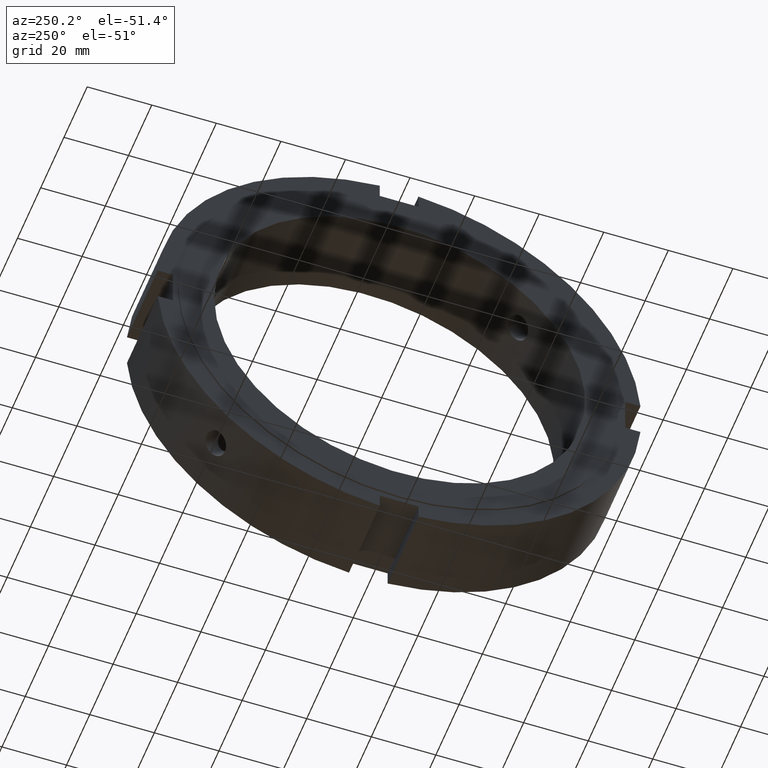
[diagram: clean part render]
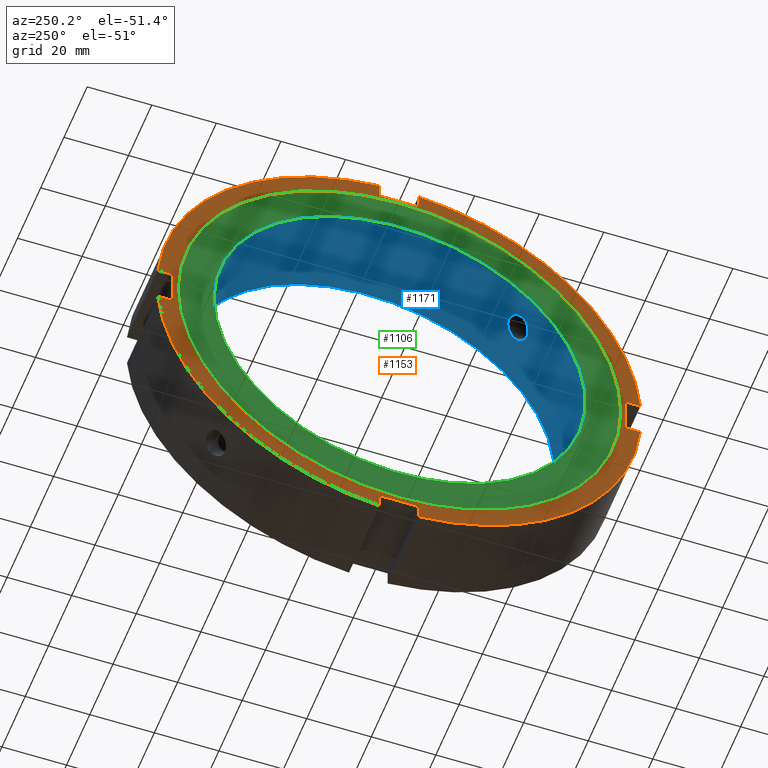
[diagram: same view with three faces highlighted in distinct colors, each labeled with its STEP entity id]
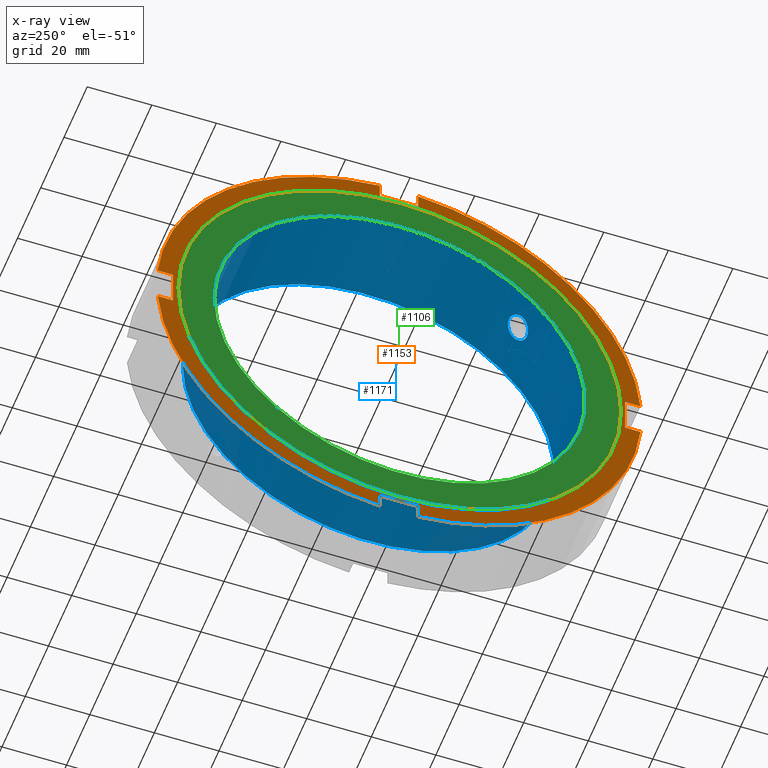
[diagram: x-ray of the same camera — body ghosted, the three highlighted faces saturated]
A machine part, auxiliary view with three faces highlighted in distinct colors.
The next image is the same camera in x-ray (body ghosted, the three faces saturated) — at least one of them is partly hidden behind the body in this view.
Their STEP definitions:

[orange] entity #1153 — the highlighted planar face has unit normal (-1, 0, 0).
#533=CARTESIAN_POINT('',(0.49999999999998,-6.000000000000011,-70.0));
#534=VERTEX_POINT('',#533);
#535=CARTESIAN_POINT('',(0.49999999999998,-6.00000000000001,-74.759614766262672));
#536=VERTEX_POINT('',#535);
#537=CARTESIAN_POINT('',(0.49999999999998,-6.000000000000012,-70.0));
#538=DIRECTION('',(0.0,0.0,-1.0));
#539=VECTOR('',#538,4.759614766262672);
#540=LINE('',#537,#539);
#541=EDGE_CURVE('',#534,#536,#540,.T.);
#573=CARTESIAN_POINT('',(0.49999999999998,5.999999999999984,-74.759614766262672));
#574=VERTEX_POINT('',#573);
#575=CARTESIAN_POINT('',(0.49999999999998,5.999999999999984,-70.0));
#576=VERTEX_POINT('',#575);
#577=CARTESIAN_POINT('',(0.49999999999998,5.999999999999977,-74.759614766262672));
#578=DIRECTION('',(0.0,0.0,1.0));
#579=VECTOR('',#578,4.759614766262672);
#580=LINE('',#577,#579);
#581=EDGE_CURVE('',#574,#576,#580,.T.);
#613=CARTESIAN_POINT('',(0.49999999999998,5.999999999999986,-70.0));
#614=DIRECTION('',(0.0,-1.0,0.0));
#615=VECTOR('',#614,12.0);
#616=LINE('',#613,#615);
#617=EDGE_CURVE('',#576,#534,#616,.T.);
#635=CARTESIAN_POINT('',(0.49999999999998,-70.0,6.000000000000006));
#636=VERTEX_POINT('',#635);
#637=CARTESIAN_POINT('',(0.49999999999998,-74.759614766262672,6.000000000000005));
#638=VERTEX_POINT('',#637);
#639=CARTESIAN_POINT('',(0.49999999999998,-70.0,6.000000000000007));
#640=DIRECTION('',(0.0,-1.0,0.0));
#641=VECTOR('',#640,4.759614766262672);
#642=LINE('',#639,#641);
#643=EDGE_CURVE('',#636,#638,#642,.T.);
#675=CARTESIAN_POINT('',(0.49999999999998,-74.759614766262672,-5.999999999999989));
#676=VERTEX_POINT('',#675);
#677=CARTESIAN_POINT('',(0.49999999999998,-70.0,-5.999999999999989));
#678=VERTEX_POINT('',#677);
#679=CARTESIAN_POINT('',(0.49999999999998,-74.759614766262672,-5.999999999999989));
#680=DIRECTION('',(0.0,1.0,0.0));
#681=VECTOR('',#680,4.759614766262672);
#682=LINE('',#679,#681);
#683=EDGE_CURVE('',#676,#678,#682,.T.);
#715=CARTESIAN_POINT('',(0.49999999999998,-70.0,-5.999999999999989));
#716=DIRECTION('',(0.0,0.0,1.0));
#717=VECTOR('',#716,11.999999999999996);
#718=LINE('',#715,#717);
#719=EDGE_CURVE('',#678,#636,#718,.T.);
#737=CARTESIAN_POINT('',(0.49999999999998,6.000000000000002,70.0));
#738=VERTEX_POINT('',#737);
#739=CARTESIAN_POINT('',(0.49999999999998,6.000000000000001,74.759614766262672));
#740=VERTEX_POINT('',#739);
#741=CARTESIAN_POINT('',(0.49999999999998,6.000000000000004,70.0));
#742=DIRECTION('',(0.0,0.0,1.0));
#743=VECTOR('',#742,4.759614766262672);
#744=LINE('',#741,#743);
#745=EDGE_CURVE('',#738,#740,#744,.T.);
#777=CARTESIAN_POINT('',(0.49999999999998,-5.999999999999993,74.759614766262672));
#778=VERTEX_POINT('',#777);
#779=CARTESIAN_POINT('',(0.49999999999998,-5.999999999999993,70.0));
#780=VERTEX_POINT('',#779);
#781=CARTESIAN_POINT('',(0.49999999999998,-5.999999999999995,74.759614766262672));
#782=DIRECTION('',(0.0,0.0,-1.0));
#783=VECTOR('',#782,4.759614766262672);
#784=LINE('',#781,#783);
#785=EDGE_CURVE('',#778,#780,#784,.T.);
#817=CARTESIAN_POINT('',(0.49999999999998,-5.999999999999993,70.0));
#818=DIRECTION('',(0.0,1.0,0.0));
#819=VECTOR('',#818,11.999999999999996);
#820=LINE('',#817,#819);
#821=EDGE_CURVE('',#780,#738,#820,.T.);
#849=CARTESIAN_POINT('',(0.49999999999998,74.759614766262672,5.999999999999997));
#850=VERTEX_POINT('',#849);
#857=CARTESIAN_POINT('',(0.49999999999998,0.0,0.0));
#858=DIRECTION('',(1.0,0.0,0.0));
#859=DIRECTION('',(0.0,1.0,0.0));
#860=AXIS2_PLACEMENT_3D('',#857,#858,#859);
#861=CIRCLE('',#860,75.0);
#862=EDGE_CURVE('',#850,#740,#861,.T.);
#881=CARTESIAN_POINT('',(0.49999999999998,0.0,0.0));
#882=DIRECTION('',(1.0,0.0,0.0));
#883=DIRECTION('',(0.0,1.0,0.0));
#884=AXIS2_PLACEMENT_3D('',#881,#882,#883);
#885=CIRCLE('',#884,75.0);
#886=EDGE_CURVE('',#778,#638,#885,.T.);
#900=CARTESIAN_POINT('',(0.49999999999998,74.759614766262672,-5.999999999999996));
#901=VERTEX_POINT('',#900);
#902=CARTESIAN_POINT('',(0.49999999999998,0.0,0.0));
#903=DIRECTION('',(1.0,0.0,0.0));
#904=DIRECTION('',(0.0,1.0,0.0));
#905=AXIS2_PLACEMENT_3D('',#902,#903,#904);
#906=CIRCLE('',#905,75.0);
#907=EDGE_CURVE('',#574,#901,#906,.T.);
#944=CARTESIAN_POINT('',(0.49999999999998,0.0,0.0));
#945=DIRECTION('',(1.0,0.0,0.0));
#946=DIRECTION('',(0.0,1.0,0.0));
#947=AXIS2_PLACEMENT_3D('',#944,#945,#946);
#948=CIRCLE('',#947,75.0);
#949=EDGE_CURVE('',#676,#536,#948,.T.);
#1019=CARTESIAN_POINT('',(0.49999999999998,70.0,-5.999999999999997));
#1020=VERTEX_POINT('',#1019);
#1021=CARTESIAN_POINT('',(0.49999999999998,70.0,-5.999999999999997));
#1022=DIRECTION('',(0.0,1.0,0.0));
#1023=VECTOR('',#1022,4.759614766262672);
#1024=LINE('',#1021,#1023);
#1025=EDGE_CURVE('',#1020,#901,#1024,.T.);
#1043=CARTESIAN_POINT('',(0.49999999999998,70.0,5.999999999999997));
#1044=VERTEX_POINT('',#1043);
#1045=CARTESIAN_POINT('',(0.49999999999998,74.759614766262672,5.999999999999996));
#1046=DIRECTION('',(0.0,-1.0,0.0));
#1047=VECTOR('',#1046,4.759614766262672);
#1048=LINE('',#1045,#1047);
#1049=EDGE_CURVE('',#850,#1044,#1048,.T.);
#1067=CARTESIAN_POINT('',(0.49999999999998,70.0,5.999999999999997));
#1068=DIRECTION('',(0.0,0.0,-1.0));
#1069=VECTOR('',#1068,11.999999999999996);
#1070=LINE('',#1067,#1069);
#1071=EDGE_CURVE('',#1044,#1020,#1070,.T.);
#1112=CARTESIAN_POINT('',(0.49999999999998,68.5,0.0));
#1113=VERTEX_POINT('',#1112);
#1114=CARTESIAN_POINT('',(0.49999999999998,0.0,0.0));
#1115=DIRECTION('',(1.0,0.0,0.0));
#1116=DIRECTION('',(0.0,1.0,0.0));
#1117=AXIS2_PLACEMENT_3D('',#1114,#1115,#1116);
#1118=CIRCLE('',#1117,68.5);
#1119=EDGE_CURVE('',#1113,#1113,#1118,.T.);
#1127=CARTESIAN_POINT('',(0.49999999999998,71.75,0.0));
#1128=DIRECTION('',(-1.0,0.0,0.0));
#1129=DIRECTION('',(0.0,0.0,1.0));
#1130=AXIS2_PLACEMENT_3D('',#1127,#1128,#1129);
#1131=PLANE('',#1130);
#1132=ORIENTED_EDGE('',*,*,#541,.T.);
#1133=ORIENTED_EDGE('',*,*,#949,.F.);
#1134=ORIENTED_EDGE('',*,*,#683,.T.);
#1135=ORIENTED_EDGE('',*,*,#719,.T.);
#1136=ORIENTED_EDGE('',*,*,#643,.T.);
#1137=ORIENTED_EDGE('',*,*,#886,.F.);
#1138=ORIENTED_EDGE('',*,*,#785,.T.);
#1139=ORIENTED_EDGE('',*,*,#821,.T.);
#1140=ORIENTED_EDGE('',*,*,#745,.T.);
#1141=ORIENTED_EDGE('',*,*,#862,.F.);
#1142=ORIENTED_EDGE('',*,*,#1049,.T.);
#1143=ORIENTED_EDGE('',*,*,#1071,.T.);
#1144=ORIENTED_EDGE('',*,*,#1025,.T.);
#1145=ORIENTED_EDGE('',*,*,#907,.F.);
#1146=ORIENTED_EDGE('',*,*,#581,.T.);
#1147=ORIENTED_EDGE('',*,*,#617,.T.);
#1148=EDGE_LOOP('',(#1132,#1133,#1134,#1135,#1136,#1137,#1138,#1139,#1140,#1141,#1142,#1143,#1144,#1145,#1146,#1147));
#1149=FACE_OUTER_BOUND('',#1148,.T.);
#1150=ORIENTED_EDGE('',*,*,#1119,.T.);
#1151=EDGE_LOOP('',(#1150));
#1152=FACE_BOUND('',#1151,.T.);
#1153=ADVANCED_FACE('',(#1149,#1152),#1131,.T.);

[blue] entity #1171 — the highlighted cylindrical surface (bore or boss wall) has radius 57.5 mm, axis along (1, 0, 0).
#256=CARTESIAN_POINT('',(10.999999999999982,-43.355662309468741,37.76951873809503));
#257=VERTEX_POINT('',#256);
#258=CARTESIAN_POINT('',(10.999999999999982,-43.355662309468734,37.769518738095037));
#259=CARTESIAN_POINT('',(11.496138641137819,-43.355662309468734,37.769518738095037));
#260=CARTESIAN_POINT('',(12.025240402017248,-43.290547493703173,37.844673293202938));
#261=CARTESIAN_POINT('',(12.998392460572504,-43.02359892889627,38.14787981128265));
#262=CARTESIAN_POINT('',(13.442456039562433,-42.821509267094925,38.375663723744267));
#263=CARTESIAN_POINT('',(14.143687267353691,-42.349778145131012,38.895623314482286));
#264=CARTESIAN_POINT('',(14.447653989924003,-42.048611580764579,39.222457652884806));
#265=CARTESIAN_POINT('',(14.850814676252249,-41.378587582895449,39.928679039565829));
#266=CARTESIAN_POINT('',(14.949999999999983,-41.009462651169805,40.307817185283156));
#267=CARTESIAN_POINT('',(14.949999999999983,-40.307817185283106,41.009462651169848));
#268=CARTESIAN_POINT('',(14.850814676252249,-39.928679039565793,41.37858758289547));
#269=CARTESIAN_POINT('',(14.447653989924003,-39.222457652884763,42.048611580764621));
#270=CARTESIAN_POINT('',(14.143687267353693,-38.895623314482222,42.349778145131047));
#271=CARTESIAN_POINT('',(13.44245603956243,-38.375663723744211,42.821509267094967));
#272=CARTESIAN_POINT('',(12.9983924605725,-38.147879811282607,43.023598928896305));
#273=CARTESIAN_POINT('',(12.025240402017246,-37.844673293202902,43.290547493703208));
#274=CARTESIAN_POINT('',(11.49613864113782,-37.769518738094987,43.355662309468777));
#275=CARTESIAN_POINT('',(10.503861358862146,-37.769518738094987,43.355662309468777));
#276=CARTESIAN_POINT('',(9.974759597982727,-37.844673293202902,43.290547493703208));
#277=CARTESIAN_POINT('',(9.001607539427472,-38.147879811282607,43.02359892889632));
#278=CARTESIAN_POINT('',(8.557543960437538,-38.375663723744211,42.821509267094967));
#279=CARTESIAN_POINT('',(7.856312732646278,-38.895623314482229,42.349778145131047));
#280=CARTESIAN_POINT('',(7.552346010075969,-39.222457652884756,42.048611580764621));
#281=CARTESIAN_POINT('',(7.149185323747722,-39.928679039565786,41.378587582895477));
#282=CARTESIAN_POINT('',(7.049999999999983,-40.307817185283106,41.009462651169848));
#283=CARTESIAN_POINT('',(7.049999999999983,-41.009462651169805,40.307817185283156));
#284=CARTESIAN_POINT('',(7.149185323747718,-41.378587582895435,39.928679039565836));
#285=CARTESIAN_POINT('',(7.552346010075959,-42.048611580764586,39.222457652884806));
#286=CARTESIAN_POINT('',(7.856312732646275,-42.349778145131012,38.895623314482286));
#287=CARTESIAN_POINT('',(8.557543960437533,-42.821509267094925,38.375663723744267));
#288=CARTESIAN_POINT('',(9.001607539427459,-43.02359892889627,38.14787981128265));
#289=CARTESIAN_POINT('',(9.974759597982715,-43.290547493703173,37.844673293202938));
#290=CARTESIAN_POINT('',(10.503861358862148,-43.355662309468734,37.769518738095037));
#291=CARTESIAN_POINT('',(10.999999999999982,-43.355662309468734,37.769518738095037));
#292=B_SPLINE_CURVE_WITH_KNOTS('',3,(#258,#259,#260,#261,#262,#263,#264,#265,#266,#267,#268,#269,#270,#271,#272,#273,#274,#275,#276,#277,#278,#279,#280,#281,#282,#283,#284,#285,#286,#287,#288,#289,#290,#291),.UNSPECIFIED.,.T.,.U.,(4,2,2,2,2,2,2,2,2,2,2,2,2,2,2,2,4),(0.0,0.148841592341351,0.297683184682702,0.446524664757886,0.59536614483307,0.744207624908254,0.893049104983438,1.041890697324789,1.19073228966614,1.339573882007492,1.488415474348843,1.637256954424027,1.786098434499211,1.934939914574395,2.083781394649579,2.23262298699093,2.381464579332281),.UNSPECIFIED.);
#293=EDGE_CURVE('',#257,#257,#292,.T.);
#486=CARTESIAN_POINT('',(10.999999999999982,37.769518738095023,-43.355662309468748));
#487=VERTEX_POINT('',#486);
#488=CARTESIAN_POINT('',(10.999999999999982,37.769518738095023,-43.355662309468741));
#489=CARTESIAN_POINT('',(10.503861358862148,37.769518738095023,-43.355662309468741));
#490=CARTESIAN_POINT('',(9.974759597982729,37.844673293202924,-43.29054749370318));
#491=CARTESIAN_POINT('',(9.001607539427475,38.147879811282621,-43.023598928896298));
#492=CARTESIAN_POINT('',(8.557543960437538,38.375663723744239,-42.821509267094967));
#493=CARTESIAN_POINT('',(7.856312732646279,38.895623314482251,-42.349778145131047));
#494=CARTESIAN_POINT('',(7.552346010075974,39.222457652884771,-42.048611580764614));
#495=CARTESIAN_POINT('',(7.149185323747725,39.928679039565793,-41.378587582895477));
#496=CARTESIAN_POINT('',(7.049999999999987,40.307817185283113,-41.009462651169841));
#497=CARTESIAN_POINT('',(7.049999999999979,41.009462651169812,-40.307817185283142));
#498=CARTESIAN_POINT('',(7.149185323747712,41.378587582895435,-39.928679039565836));
#499=CARTESIAN_POINT('',(7.552346010075953,42.048611580764586,-39.222457652884799));
#500=CARTESIAN_POINT('',(7.856312732646273,42.349778145131019,-38.895623314482279));
#501=CARTESIAN_POINT('',(8.557543960437533,42.821509267094946,-38.37566372374426));
#502=CARTESIAN_POINT('',(9.001607539427459,43.023598928896291,-38.147879811282635));
#503=CARTESIAN_POINT('',(9.974759597982715,43.290547493703187,-37.844673293202931));
#504=CARTESIAN_POINT('',(10.503861358862146,43.355662309468734,-37.76951873809503));
#505=CARTESIAN_POINT('',(11.49613864113782,43.355662309468734,-37.76951873809503));
#506=CARTESIAN_POINT('',(12.02524040201725,43.290547493703187,-37.844673293202931));
#507=CARTESIAN_POINT('',(12.998392460572505,43.023598928896291,-38.147879811282635));
#508=CARTESIAN_POINT('',(13.442456039562432,42.821509267094946,-38.37566372374426));
#509=CARTESIAN_POINT('',(14.143687267353693,42.349778145131019,-38.895623314482279));
#510=CARTESIAN_POINT('',(14.447653989924012,42.048611580764586,-39.222457652884792));
#511=CARTESIAN_POINT('',(14.85081467625225,41.378587582895435,-39.928679039565822));
#512=CARTESIAN_POINT('',(14.949999999999989,41.009462651169812,-40.307817185283142));
#513=CARTESIAN_POINT('',(14.949999999999978,40.307817185283113,-41.009462651169841));
#514=CARTESIAN_POINT('',(14.850814676252241,39.928679039565793,-41.378587582895477));
#515=CARTESIAN_POINT('',(14.447653989923992,39.222457652884771,-42.048611580764614));
#516=CARTESIAN_POINT('',(14.143687267353691,38.895623314482251,-42.349778145131047));
#517=CARTESIAN_POINT('',(13.44245603956243,38.375663723744239,-42.821509267094967));
#518=CARTESIAN_POINT('',(12.998392460572495,38.147879811282621,-43.023598928896298));
#519=CARTESIAN_POINT('',(12.025240402017239,37.844673293202924,-43.29054749370318));
#520=CARTESIAN_POINT('',(11.49613864113782,37.769518738095023,-43.355662309468748));
#521=CARTESIAN_POINT('',(10.999999999999986,37.769518738095023,-43.355662309468748));
#522=B_SPLINE_CURVE_WITH_KNOTS('',3,(#488,#489,#490,#491,#492,#493,#494,#495,#496,#497,#498,#499,#500,#501,#502,#503,#504,#505,#506,#507,#508,#509,#510,#511,#512,#513,#514,#515,#516,#517,#518,#519,#520,#521),.UNSPECIFIED.,.T.,.U.,(4,2,2,2,2,2,2,2,2,2,2,2,2,2,2,2,4),(0.0,0.148841592341351,0.297683184682702,0.446524664757886,0.59536614483307,0.744207624908254,0.893049104983437,1.041890697324789,1.19073228966614,1.339573882007492,1.488415474348843,1.637256954424027,1.786098434499211,1.934939914574395,2.083781394649579,2.23262298699093,2.381464579332281),.UNSPECIFIED.);
#523=EDGE_CURVE('',#487,#487,#522,.T.);
#1002=CARTESIAN_POINT('',(26.999999999999986,57.5,0.0));
#1003=VERTEX_POINT('',#1002);
#1004=CARTESIAN_POINT('',(26.999999999999986,0.0,0.0));
#1005=DIRECTION('',(1.0,0.0,0.0));
#1006=DIRECTION('',(0.0,1.0,0.0));
#1007=AXIS2_PLACEMENT_3D('',#1004,#1005,#1006);
#1008=CIRCLE('',#1007,57.5);
#1009=EDGE_CURVE('',#1003,#1003,#1008,.T.);
#1095=CARTESIAN_POINT('',(-1.671065E-014,57.5,0.0));
#1096=VERTEX_POINT('',#1095);
#1097=CARTESIAN_POINT('',(-1.670972E-014,0.0,0.0));
#1098=DIRECTION('',(1.0,0.0,0.0));
#1099=DIRECTION('',(0.0,1.0,0.0));
#1100=AXIS2_PLACEMENT_3D('',#1097,#1098,#1099);
#1101=CIRCLE('',#1100,57.5);
#1102=EDGE_CURVE('',#1096,#1096,#1101,.T.);
#1154=CARTESIAN_POINT('',(13.499999999999982,0.0,0.0));
#1155=DIRECTION('',(1.0,0.0,0.0));
#1156=DIRECTION('',(0.0,1.0,0.0));
#1157=AXIS2_PLACEMENT_3D('',#1154,#1155,#1156);
#1158=CYLINDRICAL_SURFACE('',#1157,57.5);
#1159=ORIENTED_EDGE('',*,*,#1102,.F.);
#1160=EDGE_LOOP('',(#1159));
#1161=FACE_OUTER_BOUND('',#1160,.T.);
#1162=ORIENTED_EDGE('',*,*,#293,.T.);
#1163=EDGE_LOOP('',(#1162));
#1164=FACE_BOUND('',#1163,.T.);
#1165=ORIENTED_EDGE('',*,*,#523,.T.);
#1166=EDGE_LOOP('',(#1165));
#1167=FACE_BOUND('',#1166,.T.);
#1168=ORIENTED_EDGE('',*,*,#1009,.T.);
#1169=EDGE_LOOP('',(#1168));
#1170=FACE_BOUND('',#1169,.T.);
#1171=ADVANCED_FACE('',(#1161,#1164,#1167,#1170),#1158,.F.);

[green] entity #1106 — the highlighted planar face has unit normal (-1, 0, 0).
#1079=CARTESIAN_POINT('',(-1.945755E-014,63.000000000000007,0.0));
#1080=DIRECTION('',(-1.0,0.0,0.0));
#1081=DIRECTION('',(0.0,0.0,1.0));
#1082=AXIS2_PLACEMENT_3D('',#1079,#1080,#1081);
#1083=PLANE('',#1082);
#1084=CARTESIAN_POINT('',(-2.220446E-014,68.5,0.0));
#1085=VERTEX_POINT('',#1084);
#1086=CARTESIAN_POINT('',(-2.220446E-014,0.0,0.0));
#1087=DIRECTION('',(1.0,0.0,0.0));
#1088=DIRECTION('',(0.0,1.0,0.0));
#1089=AXIS2_PLACEMENT_3D('',#1086,#1087,#1088);
#1090=CIRCLE('',#1089,68.5);
#1091=EDGE_CURVE('',#1085,#1085,#1090,.T.);
#1092=ORIENTED_EDGE('',*,*,#1091,.F.);
#1093=EDGE_LOOP('',(#1092));
#1094=FACE_OUTER_BOUND('',#1093,.T.);
#1095=CARTESIAN_POINT('',(-1.671065E-014,57.5,0.0));
#1096=VERTEX_POINT('',#1095);
#1097=CARTESIAN_POINT('',(-1.670972E-014,0.0,0.0));
#1098=DIRECTION('',(1.0,0.0,0.0));
#1099=DIRECTION('',(0.0,1.0,0.0));
#1100=AXIS2_PLACEMENT_3D('',#1097,#1098,#1099);
#1101=CIRCLE('',#1100,57.5);
#1102=EDGE_CURVE('',#1096,#1096,#1101,.T.);
#1103=ORIENTED_EDGE('',*,*,#1102,.T.);
#1104=EDGE_LOOP('',(#1103));
#1105=FACE_BOUND('',#1104,.T.);
#1106=ADVANCED_FACE('',(#1094,#1105),#1083,.T.);